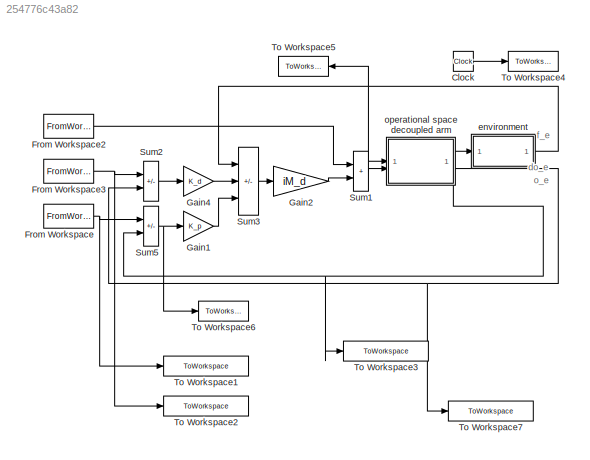
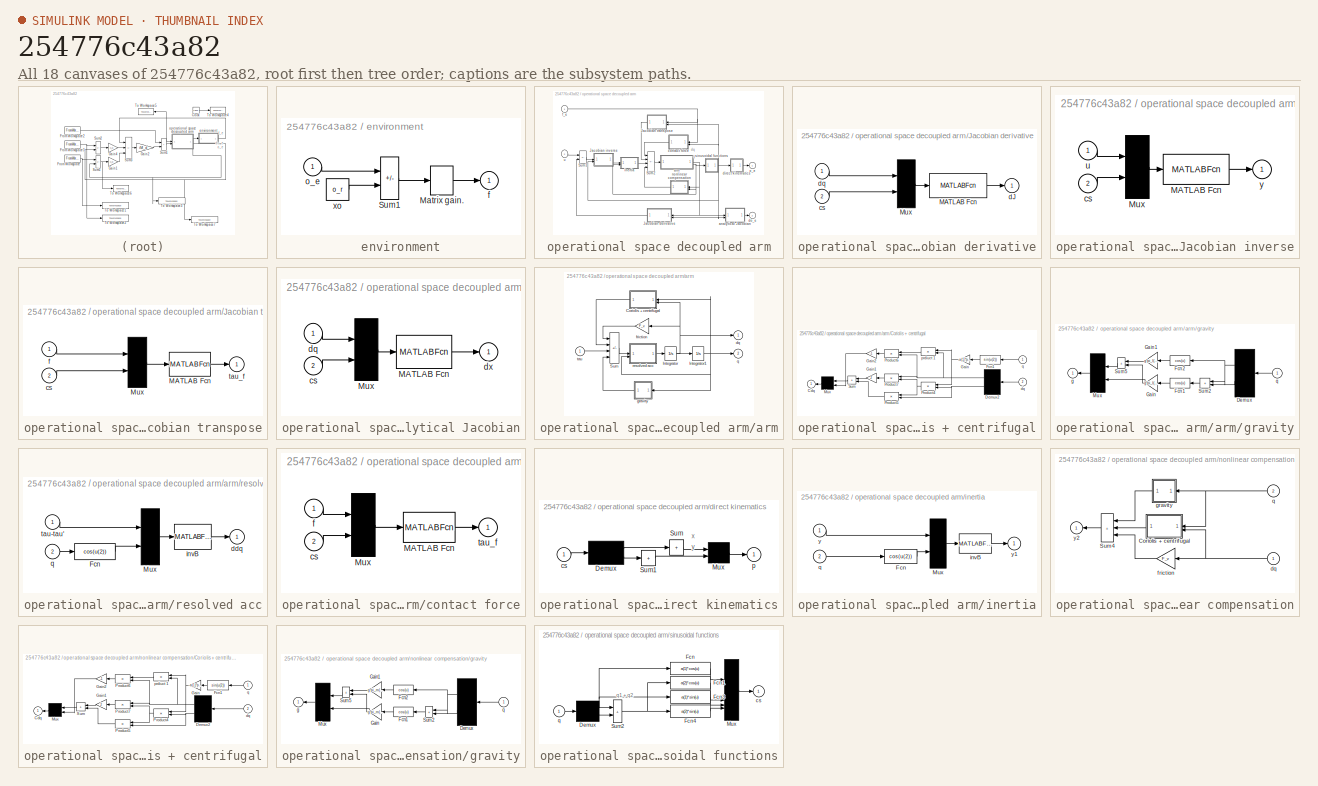
[diagram: thumbnail index - all 18 canvases of the model, root first then tree order]
MODEL slx_254776c43a82
KIND model
CONFIG AbsTol = auto
CONFIG EnableMultiTasking = off
CONFIG FixedStep = auto
CONFIG MaxStep = auto
CONFIG MinStep = auto
CONFIG RelTol = 1e-3
CONFIG SampleTimeConstraint = Unconstrained
CONFIG SolverName = VariableStepAuto
CONFIG StartTime = 0.0
CONFIG StopTime = t_d
WORKSPACE source: external: MAT-File  (data not in archive)
BLOCK [Clock] Clock
BLOCK [FromWorkspace] From Workspace
  SampleTime = Tc
  VariableName = [T,o_d]
  ZeroCross = off
BLOCK [FromWorkspace] From Workspace2
  SampleTime = Tc
  VariableName = [T,ddo_d]
  ZeroCross = off
BLOCK [FromWorkspace] From Workspace3
  SampleTime = Tc
  VariableName = [T,do_d]
  ZeroCross = off
BLOCK [Gain] Gain1
  Gain = K_p
  Multiplication = Matrix(K*u)
  SampleTime = Tc
BLOCK [Gain] Gain2
  Gain = iM_d
  Multiplication = Matrix(K*u)
  SampleTime = Tc
BLOCK [Gain] Gain4
  Gain = K_d
  Multiplication = Matrix(K*u)
  SampleTime = Tc
BLOCK [Sum] Sum1
  IconShape = rectangular
  InputSameDT = on
  OutDataTypeStr = Inherit: Same as first input
  SaturateOnIntegerOverflow = on
BLOCK [Sum] Sum2
  IconShape = rectangular
  InputSameDT = on
  Inputs = +-
  OutDataTypeStr = Inherit: Same as first input
  SampleTime = Tc
  SaturateOnIntegerOverflow = on
BLOCK [Sum] Sum3
  IconShape = rectangular
  InputSameDT = on
  Inputs = -++
  OutDataTypeStr = Inherit: Same as first input
  SampleTime = Tc
  SaturateOnIntegerOverflow = on
BLOCK [Sum] Sum5
  IconShape = rectangular
  InputSameDT = on
  Inputs = +-
  OutDataTypeStr = Inherit: Same as first input
  SampleTime = Tc
  SaturateOnIntegerOverflow = on
BLOCK [ToWorkspace] To Workspace1
  MaxDataPoints = 5001
  SampleTime = Ts
  VariableName = pos_desired
BLOCK [ToWorkspace] To Workspace2
  MaxDataPoints = 5001
  SampleTime = Ts
  VariableName = vel_desired
BLOCK [ToWorkspace] To Workspace3
  MaxDataPoints = 5001
  SampleTime = Ts
  VariableName = pos_actual
BLOCK [ToWorkspace] To Workspace4
  MaxDataPoints = 5001
  SampleTime = Ts
  VariableName = time
BLOCK [ToWorkspace] To Workspace5
  MaxDataPoints = 5001
  SampleTime = Ts
  VariableName = f_e
BLOCK [ToWorkspace] To Workspace6
  MaxDataPoints = 5001
  SampleTime = Ts
  VariableName = e
BLOCK [ToWorkspace] To Workspace7
  MaxDataPoints = 5001
  SampleTime = Ts
  VariableName = vel_actual
BLOCK [SubSystem] environment
  NameLocation = top
  ShowPortLabels = none
BLOCK [StateSpace] environment/Matrix gain.
  A = []
  B = []
  C = []
  D = K
  InitialCondition = 0
BLOCK [Sum] environment/Sum1
  IconShape = rectangular
  InputSameDT = on
  Inputs = +-
  OutDataTypeStr = Inherit: Same as first input
  SaturateOnIntegerOverflow = on
BLOCK [Outport] environment/f
  InitialOutput = 0
BLOCK [Inport] environment/o_e
BLOCK [Constant] environment/xo
  Value = o_r
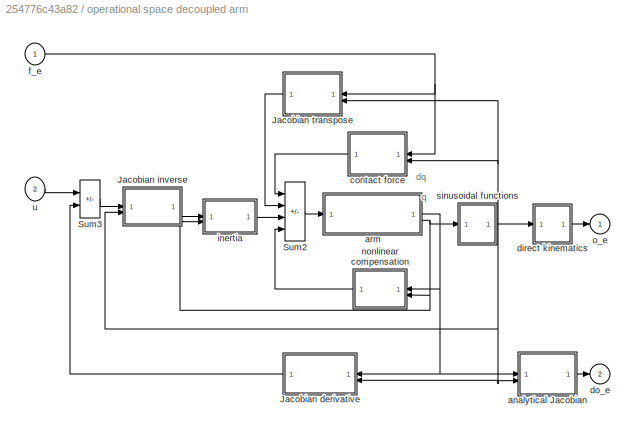
BLOCK [SubSystem] operational space decoupled arm
  NameLocation = top
  ShowPortLabels = none
BLOCK [SubSystem] operational space decoupled arm/Jacobian derivative
  NameLocation = top
  ShowPortLabels = none
BLOCK [MATLABFcn] operational space decoupled arm/Jacobian derivative/MATLAB Fcn
  MATLABFcn = dJ_a
  OutputDimensions = 2
  SampleTime = Tc
BLOCK [Mux] operational space decoupled arm/Jacobian derivative/Mux
  Inputs = [2,4]
BLOCK [Inport] operational space decoupled arm/Jacobian derivative/cs
  Port = 2
BLOCK [Outport] operational space decoupled arm/Jacobian derivative/dJ
  InitialOutput = 0
BLOCK [Inport] operational space decoupled arm/Jacobian derivative/dq
BLOCK [SubSystem] operational space decoupled arm/Jacobian inverse
  NameLocation = top
  ShowPortLabels = none
BLOCK [MATLABFcn] operational space decoupled arm/Jacobian inverse/MATLAB Fcn
  MATLABFcn = invJ_a
  OutputDimensions = 2
  SampleTime = Tc
BLOCK [Mux] operational space decoupled arm/Jacobian inverse/Mux
  Inputs = [2,4]
BLOCK [Inport] operational space decoupled arm/Jacobian inverse/cs
  Port = 2
BLOCK [Inport] operational space decoupled arm/Jacobian inverse/u
BLOCK [Outport] operational space decoupled arm/Jacobian inverse/y
  InitialOutput = 0
BLOCK [SubSystem] operational space decoupled arm/Jacobian transpose
  NameLocation = top
  ShowPortLabels = none
BLOCK [MATLABFcn] operational space decoupled arm/Jacobian transpose/MATLAB Fcn
  MATLABFcn = trJ_a
  OutputDimensions = 2
  SampleTime = Tc
BLOCK [Mux] operational space decoupled arm/Jacobian transpose/Mux
  Inputs = [2,4]
BLOCK [Inport] operational space decoupled arm/Jacobian transpose/cs
  Port = 2
BLOCK [Inport] operational space decoupled arm/Jacobian transpose/f
BLOCK [Outport] operational space decoupled arm/Jacobian transpose/tau_f
  InitialOutput = 0
BLOCK [Sum] operational space decoupled arm/Sum2
  IconShape = rectangular
  InputSameDT = on
  Inputs = -+++
  OutDataTypeStr = Inherit: Same as first input
  SaturateOnIntegerOverflow = on
BLOCK [Sum] operational space decoupled arm/Sum3
  IconShape = rectangular
  InputSameDT = on
  Inputs = +-
  OutDataTypeStr = Inherit: Same as first input
  SaturateOnIntegerOverflow = on
BLOCK [SubSystem] operational space decoupled arm/analytical Jacobian
  NameLocation = top
  ShowPortLabels = none
BLOCK [MATLABFcn] operational space decoupled arm/analytical Jacobian/MATLAB Fcn
  MATLABFcn = J_adq
  OutputDimensions = 2
BLOCK [Mux] operational space decoupled arm/analytical Jacobian/Mux
  Inputs = [2,4]
BLOCK [Inport] operational space decoupled arm/analytical Jacobian/cs
  Port = 2
BLOCK [Inport] operational space decoupled arm/analytical Jacobian/dq
BLOCK [Outport] operational space decoupled arm/analytical Jacobian/dx
  InitialOutput = 0
BLOCK [SubSystem] operational space decoupled arm/arm
  NameLocation = top
  ShowPortLabels = none
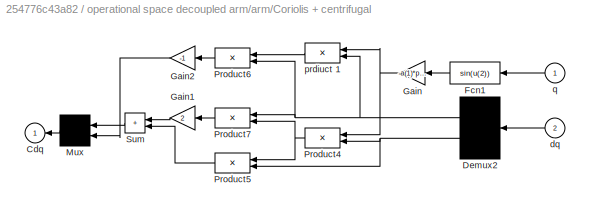
BLOCK [SubSystem] operational space decoupled arm/arm/Coriolis + centrifugal
  NameLocation = top
  ShowPortLabels = none
BLOCK [Outport] operational space decoupled arm/arm/Coriolis + centrifugal/Cdq
  InitialOutput = 0
BLOCK [Demux] operational space decoupled arm/arm/Coriolis + centrifugal/Demux2
  DisplayOption = none
  Outputs = 2
BLOCK [Fcn] operational space decoupled arm/arm/Coriolis + centrifugal/Fcn1
  Expr = sin(u(2))
BLOCK [Gain] operational space decoupled arm/arm/Coriolis + centrifugal/Gain
  Gain = -a(1)*pi_l(3)
  OutDataTypeStr = Inherit: Same as input
  ParamDataTypeStr = Inherit: Same as input
  SaturateOnIntegerOverflow = on
BLOCK [Gain] operational space decoupled arm/arm/Coriolis + centrifugal/Gain1
  Gain = 2
  OutDataTypeStr = Inherit: Same as input
  ParamDataTypeStr = Inherit: Same as input
  SaturateOnIntegerOverflow = on
BLOCK [Gain] operational space decoupled arm/arm/Coriolis + centrifugal/Gain2
  Gain = -1
  OutDataTypeStr = Inherit: Same as input
  ParamDataTypeStr = Inherit: Same as input
  SaturateOnIntegerOverflow = on
BLOCK [Mux] operational space decoupled arm/arm/Coriolis + centrifugal/Mux
  Inputs = 2
BLOCK [Product] operational space decoupled arm/arm/Coriolis + centrifugal/Product4
  InputSameDT = on
  OutDataTypeStr = Inherit: Same as first input
  RndMeth = Zero
  SaturateOnIntegerOverflow = on
BLOCK [Product] operational space decoupled arm/arm/Coriolis + centrifugal/Product5
  InputSameDT = on
  OutDataTypeStr = Inherit: Same as first input
  RndMeth = Zero
  SaturateOnIntegerOverflow = on
BLOCK [Product] operational space decoupled arm/arm/Coriolis + centrifugal/Product6
  InputSameDT = on
  OutDataTypeStr = Inherit: Same as first input
  RndMeth = Zero
  SaturateOnIntegerOverflow = on
BLOCK [Product] operational space decoupled arm/arm/Coriolis + centrifugal/Product7
  InputSameDT = on
  OutDataTypeStr = Inherit: Same as first input
  RndMeth = Zero
  SaturateOnIntegerOverflow = on
BLOCK [Sum] operational space decoupled arm/arm/Coriolis + centrifugal/Sum
  IconShape = rectangular
  InputSameDT = on
  OutDataTypeStr = Inherit: Same as first input
  SaturateOnIntegerOverflow = on
BLOCK [Inport] operational space decoupled arm/arm/Coriolis + centrifugal/dq
  Port = 2
BLOCK [Product] operational space decoupled arm/arm/Coriolis + centrifugal/prdiuct 1
  InputSameDT = on
  NameLocation = top
  OutDataTypeStr = Inherit: Same as first input
  RndMeth = Zero
  SaturateOnIntegerOverflow = on
BLOCK [Inport] operational space decoupled arm/arm/Coriolis + centrifugal/q
BLOCK [Integrator] operational space decoupled arm/arm/Integrator
  InitialCondition = [0 0]
  ZeroCross = off
BLOCK [Integrator] operational space decoupled arm/arm/Integrator1
  InitialCondition = q_i
  ZeroCross = off
BLOCK [Sum] operational space decoupled arm/arm/Sum
  IconShape = rectangular
  InputSameDT = on
  Inputs = --+-
  OutDataTypeStr = Inherit: Same as first input
  SaturateOnIntegerOverflow = on
BLOCK [Outport] operational space decoupled arm/arm/dq
  InitialOutput = 0
BLOCK [Gain] operational space decoupled arm/arm/friction
  Gain = F_v
  Multiplication = Matrix(K*u)
  NameLocation = top
  OutDataTypeStr = Inherit: Same as input
  ParamDataTypeStr = Inherit: Same as input
  SaturateOnIntegerOverflow = on
BLOCK [SubSystem] operational space decoupled arm/arm/gravity
  NameLocation = top
  ShowPortLabels = none
BLOCK [Demux] operational space decoupled arm/arm/gravity/Demux
  DisplayOption = none
  Outputs = 2
BLOCK [Fcn] operational space decoupled arm/arm/gravity/Fcn1
  Expr = cos(u)
BLOCK [Fcn] operational space decoupled arm/arm/gravity/Fcn2
  Expr = cos(u)
BLOCK [Gain] operational space decoupled arm/arm/gravity/Gain
  Gain = g*pi_l(3)
  OutDataTypeStr = Inherit: Same as input
  ParamDataTypeStr = Inherit: Same as input
  SaturateOnIntegerOverflow = on
BLOCK [Gain] operational space decoupled arm/arm/gravity/Gain1
  Gain = g*pi_l(1)
  OutDataTypeStr = Inherit: Same as input
  ParamDataTypeStr = Inherit: Same as input
  SaturateOnIntegerOverflow = on
BLOCK [Mux] operational space decoupled arm/arm/gravity/Mux
  Inputs = 2
BLOCK [Sum] operational space decoupled arm/arm/gravity/Sum2
  IconShape = rectangular
  InputSameDT = on
  OutDataTypeStr = Inherit: Same as first input
  SaturateOnIntegerOverflow = on
BLOCK [Sum] operational space decoupled arm/arm/gravity/Sum5
  IconShape = rectangular
  InputSameDT = on
  OutDataTypeStr = Inherit: Same as first input
  SaturateOnIntegerOverflow = on
BLOCK [Outport] operational space decoupled arm/arm/gravity/g
  InitialOutput = 0
BLOCK [Inport] operational space decoupled arm/arm/gravity/q
BLOCK [Outport] operational space decoupled arm/arm/q 
  InitialOutput = 0
  Port = 2
BLOCK [SubSystem] operational space decoupled arm/arm/resolved acc
  NameLocation = top
  ShowPortLabels = none
BLOCK [Fcn] operational space decoupled arm/arm/resolved acc/Fcn
  Expr = cos(u(2))
BLOCK [Mux] operational space decoupled arm/arm/resolved acc/Mux
  Inputs = [2,1]
BLOCK [Outport] operational space decoupled arm/arm/resolved acc/ddq
  InitialOutput = 0
BLOCK [MATLABFcn] operational space decoupled arm/arm/resolved acc/invB 
  MATLABFcn = inv(iner_l(u(3)))*u(1:2)
  OutputDimensions = 2
BLOCK [Inport] operational space decoupled arm/arm/resolved acc/q
  Port = 2
BLOCK [Inport] operational space decoupled arm/arm/resolved acc/tau-tau'
BLOCK [Inport] operational space decoupled arm/arm/tau
BLOCK [SubSystem] operational space decoupled arm/contact force
  NameLocation = top
  ShowPortLabels = none
BLOCK [MATLABFcn] operational space decoupled arm/contact force/MATLAB Fcn
  MATLABFcn = trJ_a
  OutputDimensions = 2
BLOCK [Mux] operational space decoupled arm/contact force/Mux
  Inputs = [2,4]
BLOCK [Inport] operational space decoupled arm/contact force/cs
  Port = 2
BLOCK [Inport] operational space decoupled arm/contact force/f
BLOCK [Outport] operational space decoupled arm/contact force/tau_f
  InitialOutput = 0
BLOCK [SubSystem] operational space decoupled arm/direct kinematics
  NameLocation = top
  ShowPortLabels = none
BLOCK [Demux] operational space decoupled arm/direct kinematics/Demux
  DisplayOption = none
  Outputs = [2,2]
BLOCK [Mux] operational space decoupled arm/direct kinematics/Mux
  Inputs = 2
BLOCK [Sum] operational space decoupled arm/direct kinematics/Sum
  IconShape = rectangular
  InputSameDT = on
  Inputs = +
  OutDataTypeStr = Inherit: Same as first input
  SaturateOnIntegerOverflow = on
BLOCK [Sum] operational space decoupled arm/direct kinematics/Sum1
  IconShape = rectangular
  InputSameDT = on
  Inputs = +
  OutDataTypeStr = Inherit: Same as first input
  SaturateOnIntegerOverflow = on
BLOCK [Inport] operational space decoupled arm/direct kinematics/cs
BLOCK [Outport] operational space decoupled arm/direct kinematics/p
  InitialOutput = 0
BLOCK [Outport] operational space decoupled arm/do_e
  InitialOutput = 0
  Port = 2
BLOCK [Inport] operational space decoupled arm/f_e
BLOCK [SubSystem] operational space decoupled arm/inertia
  NameLocation = top
  ShowPortLabels = none
BLOCK [Fcn] operational space decoupled arm/inertia/Fcn
  Expr = cos(u(2))
  SampleTime = Tc
BLOCK [Mux] operational space decoupled arm/inertia/Mux
  Inputs = [2,1]
BLOCK [MATLABFcn] operational space decoupled arm/inertia/invB 
  MATLABFcn = iner(u(3))*u(1:2)
  OutputDimensions = 2
  SampleTime = Tc
BLOCK [Inport] operational space decoupled arm/inertia/q
  Port = 2
BLOCK [Inport] operational space decoupled arm/inertia/y
BLOCK [Outport] operational space decoupled arm/inertia/y1
  InitialOutput = 0
BLOCK [SubSystem] operational space decoupled arm/nonlinear compensation
  NameLocation = top
  ShowPortLabels = none
BLOCK [SubSystem] operational space decoupled arm/nonlinear compensation/Coriolis + centrifugal
  NameLocation = top
  ShowPortLabels = none
BLOCK [Outport] operational space decoupled arm/nonlinear compensation/Coriolis + centrifugal/Cdq
  InitialOutput = 0
BLOCK [Demux] operational space decoupled arm/nonlinear compensation/Coriolis + centrifugal/Demux2
  DisplayOption = none
  Outputs = 2
BLOCK [Fcn] operational space decoupled arm/nonlinear compensation/Coriolis + centrifugal/Fcn1
  Expr = sin(u(2))
  SampleTime = Tc
BLOCK [Gain] operational space decoupled arm/nonlinear compensation/Coriolis + centrifugal/Gain
  Gain = -a(1)*pi_m(3)
  OutDataTypeStr = Inherit: Same as input
  ParamDataTypeStr = Inherit: Same as input
  SaturateOnIntegerOverflow = on
BLOCK [Gain] operational space decoupled arm/nonlinear compensation/Coriolis + centrifugal/Gain1
  Gain = 2
  OutDataTypeStr = Inherit: Same as input
  ParamDataTypeStr = Inherit: Same as input
  SaturateOnIntegerOverflow = on
BLOCK [Gain] operational space decoupled arm/nonlinear compensation/Coriolis + centrifugal/Gain2
  Gain = -1
  OutDataTypeStr = Inherit: Same as input
  ParamDataTypeStr = Inherit: Same as input
  SaturateOnIntegerOverflow = on
BLOCK [Mux] operational space decoupled arm/nonlinear compensation/Coriolis + centrifugal/Mux
  Inputs = 2
BLOCK [Product] operational space decoupled arm/nonlinear compensation/Coriolis + centrifugal/Product4
  InputSameDT = on
  OutDataTypeStr = Inherit: Same as first input
  RndMeth = Zero
  SampleTime = Tc
  SaturateOnIntegerOverflow = on
BLOCK [Product] operational space decoupled arm/nonlinear compensation/Coriolis + centrifugal/Product5
  InputSameDT = on
  OutDataTypeStr = Inherit: Same as first input
  RndMeth = Zero
  SampleTime = Tc
  SaturateOnIntegerOverflow = on
BLOCK [Product] operational space decoupled arm/nonlinear compensation/Coriolis + centrifugal/Product6
  InputSameDT = on
  OutDataTypeStr = Inherit: Same as first input
  RndMeth = Zero
  SampleTime = Tc
  SaturateOnIntegerOverflow = on
BLOCK [Product] operational space decoupled arm/nonlinear compensation/Coriolis + centrifugal/Product7
  InputSameDT = on
  OutDataTypeStr = Inherit: Same as first input
  RndMeth = Zero
  SampleTime = Tc
  SaturateOnIntegerOverflow = on
BLOCK [Sum] operational space decoupled arm/nonlinear compensation/Coriolis + centrifugal/Sum
  IconShape = rectangular
  InputSameDT = on
  OutDataTypeStr = Inherit: Same as first input
  SaturateOnIntegerOverflow = on
BLOCK [Inport] operational space decoupled arm/nonlinear compensation/Coriolis + centrifugal/dq
  Port = 2
BLOCK [Product] operational space decoupled arm/nonlinear compensation/Coriolis + centrifugal/prdiuct 1
  InputSameDT = on
  NameLocation = top
  OutDataTypeStr = Inherit: Same as first input
  RndMeth = Zero
  SampleTime = Tc
  SaturateOnIntegerOverflow = on
BLOCK [Inport] operational space decoupled arm/nonlinear compensation/Coriolis + centrifugal/q
BLOCK [Sum] operational space decoupled arm/nonlinear compensation/Sum4
  IconShape = rectangular
  InputSameDT = on
  Inputs = +++
  OutDataTypeStr = Inherit: Same as first input
  SaturateOnIntegerOverflow = on
BLOCK [Inport] operational space decoupled arm/nonlinear compensation/dq
BLOCK [Gain] operational space decoupled arm/nonlinear compensation/friction
  Gain = F_v
  Multiplication = Matrix(K*u)
  NameLocation = top
  OutDataTypeStr = Inherit: Same as input
  ParamDataTypeStr = Inherit: Same as input
  SampleTime = Tc
  SaturateOnIntegerOverflow = on
BLOCK [SubSystem] operational space decoupled arm/nonlinear compensation/gravity
  NameLocation = top
  ShowPortLabels = none
BLOCK [Demux] operational space decoupled arm/nonlinear compensation/gravity/Demux
  DisplayOption = none
  Outputs = 2
BLOCK [Fcn] operational space decoupled arm/nonlinear compensation/gravity/Fcn1
  Expr = cos(u)
  SampleTime = Tc
BLOCK [Fcn] operational space decoupled arm/nonlinear compensation/gravity/Fcn2
  Expr = cos(u)
  SampleTime = Tc
BLOCK [Gain] operational space decoupled arm/nonlinear compensation/gravity/Gain
  Gain = g*pi_m(3)
  OutDataTypeStr = Inherit: Same as input
  ParamDataTypeStr = Inherit: Same as input
  SaturateOnIntegerOverflow = on
BLOCK [Gain] operational space decoupled arm/nonlinear compensation/gravity/Gain1
  Gain = g*pi_m(1)
  OutDataTypeStr = Inherit: Same as input
  ParamDataTypeStr = Inherit: Same as input
  SaturateOnIntegerOverflow = on
BLOCK [Mux] operational space decoupled arm/nonlinear compensation/gravity/Mux
  Inputs = 2
BLOCK [Sum] operational space decoupled arm/nonlinear compensation/gravity/Sum2
  IconShape = rectangular
  InputSameDT = on
  OutDataTypeStr = Inherit: Same as first input
  SampleTime = Tc
  SaturateOnIntegerOverflow = on
BLOCK [Sum] operational space decoupled arm/nonlinear compensation/gravity/Sum5
  IconShape = rectangular
  InputSameDT = on
  OutDataTypeStr = Inherit: Same as first input
  SaturateOnIntegerOverflow = on
BLOCK [Outport] operational space decoupled arm/nonlinear compensation/gravity/g
  InitialOutput = 0
BLOCK [Inport] operational space decoupled arm/nonlinear compensation/gravity/q
BLOCK [Inport] operational space decoupled arm/nonlinear compensation/q
  Port = 2
BLOCK [Outport] operational space decoupled arm/nonlinear compensation/y2
  InitialOutput = 0
BLOCK [Outport] operational space decoupled arm/o_e
  InitialOutput = 0
BLOCK [SubSystem] operational space decoupled arm/sinusoidal functions
  NameLocation = top
  ShowPortLabels = none
BLOCK [Demux] operational space decoupled arm/sinusoidal functions/Demux
  DisplayOption = none
  Outputs = 2
BLOCK [Fcn] operational space decoupled arm/sinusoidal functions/Fcn
  Expr = a(1)*cos(u)
BLOCK [Fcn] operational space decoupled arm/sinusoidal functions/Fcn1
  Expr = a(2)*cos(u)
BLOCK [Fcn] operational space decoupled arm/sinusoidal functions/Fcn3
  Expr = a(1)*sin(u)
BLOCK [Fcn] operational space decoupled arm/sinusoidal functions/Fcn4
  Expr = a(2)*sin(u)
BLOCK [Mux] operational space decoupled arm/sinusoidal functions/Mux
BLOCK [Sum] operational space decoupled arm/sinusoidal functions/Sum2
  IconShape = rectangular
  InputSameDT = on
  OutDataTypeStr = Inherit: Same as first input
  SaturateOnIntegerOverflow = on
BLOCK [Outport] operational space decoupled arm/sinusoidal functions/cs
  InitialOutput = 0
BLOCK [Inport] operational space decoupled arm/sinusoidal functions/q
BLOCK [Inport] operational space decoupled arm/u
  Port = 2
ANNOTATION (root): do_e
ANNOTATION (root): f_e
ANNOTATION (root): o_e
ANNOTATION operational space decoupled arm: dq
ANNOTATION operational space decoupled arm: q
ANNOTATION operational space decoupled arm/direct kinematics: x
ANNOTATION operational space decoupled arm/direct kinematics: y
ANNOTATION operational space decoupled arm/sinusoidal functions: q1 + q2
LINE Clock:1 -> To Workspace4:1
LINE From Workspace2:1 -> Sum1:1
NET From Workspace3:1 -> Sum2:1, To Workspace2:1
NET From Workspace:1 -> Sum5:1, To Workspace1:1
LINE Gain1:1 -> Sum3:3
LINE Gain2:1 -> Sum1:2
LINE Gain4:1 -> Sum3:2
LINE Sum1:1 -> operational space decoupled arm:2
LINE Sum2:1 -> Gain4:1
LINE Sum3:1 -> Gain2:1
NET Sum5:1 -> Gain1:1, To Workspace6:1
LINE environment/Matrix gain.:1 -> environment/f:1
LINE environment/Sum1:1 -> environment/Matrix gain.:1
LINE environment/o_e:1 -> environment/Sum1:1
LINE environment/xo:1 -> environment/Sum1:2
NET environment:1 -> Sum3:1, To Workspace5:1, operational space decoupled arm:1
LINE operational space decoupled arm/Jacobian derivative/MATLAB Fcn:1 -> operational space decoupled arm/Jacobian derivative/dJ:1
LINE operational space decoupled arm/Jacobian derivative/Mux:1 -> operational space decoupled arm/Jacobian derivative/MATLAB Fcn:1
LINE operational space decoupled arm/Jacobian derivative/cs:1 -> operational space decoupled arm/Jacobian derivative/Mux:2
LINE operational space decoupled arm/Jacobian derivative/dq:1 -> operational space decoupled arm/Jacobian derivative/Mux:1
LINE operational space decoupled arm/Jacobian derivative:1 -> operational space decoupled arm/Sum3:2
LINE operational space decoupled arm/Jacobian inverse/MATLAB Fcn:1 -> operational space decoupled arm/Jacobian inverse/y:1
LINE operational space decoupled arm/Jacobian inverse/Mux:1 -> operational space decoupled arm/Jacobian inverse/MATLAB Fcn:1
LINE operational space decoupled arm/Jacobian inverse/cs:1 -> operational space decoupled arm/Jacobian inverse/Mux:2
LINE operational space decoupled arm/Jacobian inverse/u:1 -> operational space decoupled arm/Jacobian inverse/Mux:1
LINE operational space decoupled arm/Jacobian inverse:1 -> operational space decoupled arm/inertia:1
LINE operational space decoupled arm/Jacobian transpose/MATLAB Fcn:1 -> operational space decoupled arm/Jacobian transpose/tau_f:1
LINE operational space decoupled arm/Jacobian transpose/Mux:1 -> operational space decoupled arm/Jacobian transpose/MATLAB Fcn:1
LINE operational space decoupled arm/Jacobian transpose/cs:1 -> operational space decoupled arm/Jacobian transpose/Mux:2
LINE operational space decoupled arm/Jacobian transpose/f:1 -> operational space decoupled arm/Jacobian transpose/Mux:1
LINE operational space decoupled arm/Jacobian transpose:1 -> operational space decoupled arm/Sum2:2
LINE operational space decoupled arm/Sum2:1 -> operational space decoupled arm/arm:1
LINE operational space decoupled arm/Sum3:1 -> operational space decoupled arm/Jacobian inverse:1
LINE operational space decoupled arm/analytical Jacobian/MATLAB Fcn:1 -> operational space decoupled arm/analytical Jacobian/dx:1
LINE operational space decoupled arm/analytical Jacobian/Mux:1 -> operational space decoupled arm/analytical Jacobian/MATLAB Fcn:1
LINE operational space decoupled arm/analytical Jacobian/cs:1 -> operational space decoupled arm/analytical Jacobian/Mux:2
LINE operational space decoupled arm/analytical Jacobian/dq:1 -> operational space decoupled arm/analytical Jacobian/Mux:1
LINE operational space decoupled arm/analytical Jacobian:1 -> operational space decoupled arm/do_e:1
NET operational space decoupled arm/arm/Coriolis + centrifugal/Demux2:1 -> operational space decoupled arm/arm/Coriolis + centrifugal/Product6:2, operational space decoupled arm/arm/Coriolis + centrifugal/Product7:1, operational space decoupled arm/arm/Coriolis + centrifugal/prdiuct 1:2
NET operational space decoupled arm/arm/Coriolis + centrifugal/Demux2:2 -> operational space decoupled arm/arm/Coriolis + centrifugal/Product4:2, operational space decoupled arm/arm/Coriolis + centrifugal/Product5:2
LINE operational space decoupled arm/arm/Coriolis + centrifugal/Fcn1:1 -> operational space decoupled arm/arm/Coriolis + centrifugal/Gain:1
LINE operational space decoupled arm/arm/Coriolis + centrifugal/Gain1:1 -> operational space decoupled arm/arm/Coriolis + centrifugal/Sum:1
LINE operational space decoupled arm/arm/Coriolis + centrifugal/Gain2:1 -> operational space decoupled arm/arm/Coriolis + centrifugal/Mux:2
NET operational space decoupled arm/arm/Coriolis + centrifugal/Gain:1 -> operational space decoupled arm/arm/Coriolis + centrifugal/Product4:1, operational space decoupled arm/arm/Coriolis + centrifugal/prdiuct 1:1
LINE operational space decoupled arm/arm/Coriolis + centrifugal/Mux:1 -> operational space decoupled arm/arm/Coriolis + centrifugal/Cdq:1
NET operational space decoupled arm/arm/Coriolis + centrifugal/Product4:1 -> operational space decoupled arm/arm/Coriolis + centrifugal/Product5:1, operational space decoupled arm/arm/Coriolis + centrifugal/Product7:2
LINE operational space decoupled arm/arm/Coriolis + centrifugal/Product5:1 -> operational space decoupled arm/arm/Coriolis + centrifugal/Sum:2
LINE operational space decoupled arm/arm/Coriolis + centrifugal/Product6:1 -> operational space decoupled arm/arm/Coriolis + centrifugal/Gain2:1
LINE operational space decoupled arm/arm/Coriolis + centrifugal/Product7:1 -> operational space decoupled arm/arm/Coriolis + centrifugal/Gain1:1
LINE operational space decoupled arm/arm/Coriolis + centrifugal/Sum:1 -> operational space decoupled arm/arm/Coriolis + centrifugal/Mux:1
LINE operational space decoupled arm/arm/Coriolis + centrifugal/dq:1 -> operational space decoupled arm/arm/Coriolis + centrifugal/Demux2:1
LINE operational space decoupled arm/arm/Coriolis + centrifugal/prdiuct 1:1 -> operational space decoupled arm/arm/Coriolis + centrifugal/Product6:1
LINE operational space decoupled arm/arm/Coriolis + centrifugal/q:1 -> operational space decoupled arm/arm/Coriolis + centrifugal/Fcn1:1
LINE operational space decoupled arm/arm/Coriolis + centrifugal:1 -> operational space decoupled arm/arm/Sum:2
NET operational space decoupled arm/arm/Integrator1:1 -> operational space decoupled arm/arm/Coriolis + centrifugal:1, operational space decoupled arm/arm/gravity:1, operational space decoupled arm/arm/q :1, operational space decoupled arm/arm/resolved acc:2
NET operational space decoupled arm/arm/Integrator:1 -> operational space decoupled arm/arm/Coriolis + centrifugal:2, operational space decoupled arm/arm/Integrator1:1, operational space decoupled arm/arm/dq:1, operational space decoupled arm/arm/friction:1
LINE operational space decoupled arm/arm/Sum:1 -> operational space decoupled arm/arm/resolved acc:1
LINE operational space decoupled arm/arm/friction:1 -> operational space decoupled arm/arm/Sum:1
NET operational space decoupled arm/arm/gravity/Demux:1 -> operational space decoupled arm/arm/gravity/Fcn2:1, operational space decoupled arm/arm/gravity/Sum2:1
LINE operational space decoupled arm/arm/gravity/Demux:2 -> operational space decoupled arm/arm/gravity/Sum2:2
LINE operational space decoupled arm/arm/gravity/Fcn1:1 -> operational space decoupled arm/arm/gravity/Gain:1
LINE operational space decoupled arm/arm/gravity/Fcn2:1 -> operational space decoupled arm/arm/gravity/Gain1:1
LINE operational space decoupled arm/arm/gravity/Gain1:1 -> operational space decoupled arm/arm/gravity/Sum5:1
NET operational space decoupled arm/arm/gravity/Gain:1 -> operational space decoupled arm/arm/gravity/Mux:2, operational space decoupled arm/arm/gravity/Sum5:2
LINE operational space decoupled arm/arm/gravity/Mux:1 -> operational space decoupled arm/arm/gravity/g:1
LINE operational space decoupled arm/arm/gravity/Sum2:1 -> operational space decoupled arm/arm/gravity/Fcn1:1
LINE operational space decoupled arm/arm/gravity/Sum5:1 -> operational space decoupled arm/arm/gravity/Mux:1
LINE operational space decoupled arm/arm/gravity/q:1 -> operational space decoupled arm/arm/gravity/Demux:1
LINE operational space decoupled arm/arm/gravity:1 -> operational space decoupled arm/arm/Sum:4
LINE operational space decoupled arm/arm/resolved acc/Fcn:1 -> operational space decoupled arm/arm/resolved acc/Mux:2
LINE operational space decoupled arm/arm/resolved acc/Mux:1 -> operational space decoupled arm/arm/resolved acc/invB :1
LINE operational space decoupled arm/arm/resolved acc/invB :1 -> operational space decoupled arm/arm/resolved acc/ddq:1
LINE operational space decoupled arm/arm/resolved acc/q:1 -> operational space decoupled arm/arm/resolved acc/Fcn:1
LINE operational space decoupled arm/arm/resolved acc/tau-tau':1 -> operational space decoupled arm/arm/resolved acc/Mux:1
LINE operational space decoupled arm/arm/resolved acc:1 -> operational space decoupled arm/arm/Integrator:1
LINE operational space decoupled arm/arm/tau:1 -> operational space decoupled arm/arm/Sum:3
NET operational space decoupled arm/arm:1 -> operational space decoupled arm/Jacobian derivative:1, operational space decoupled arm/analytical Jacobian:1, operational space decoupled arm/nonlinear compensation:1
NET operational space decoupled arm/arm:2 -> operational space decoupled arm/inertia:2, operational space decoupled arm/nonlinear compensation:2, operational space decoupled arm/sinusoidal functions:1
LINE operational space decoupled arm/contact force/MATLAB Fcn:1 -> operational space decoupled arm/contact force/tau_f:1
LINE operational space decoupled arm/contact force/Mux:1 -> operational space decoupled arm/contact force/MATLAB Fcn:1
LINE operational space decoupled arm/contact force/cs:1 -> operational space decoupled arm/contact force/Mux:2
LINE operational space decoupled arm/contact force/f:1 -> operational space decoupled arm/contact force/Mux:1
LINE operational space decoupled arm/contact force:1 -> operational space decoupled arm/Sum2:1
LINE operational space decoupled arm/direct kinematics/Demux:1 -> operational space decoupled arm/direct kinematics/Sum:1
LINE operational space decoupled arm/direct kinematics/Demux:2 -> operational space decoupled arm/direct kinematics/Sum1:1
LINE operational space decoupled arm/direct kinematics/Mux:1 -> operational space decoupled arm/direct kinematics/p:1
LINE operational space decoupled arm/direct kinematics/Sum1:1 -> operational space decoupled arm/direct kinematics/Mux:2
LINE operational space decoupled arm/direct kinematics/Sum:1 -> operational space decoupled arm/direct kinematics/Mux:1
LINE operational space decoupled arm/direct kinematics/cs:1 -> operational space decoupled arm/direct kinematics/Demux:1
LINE operational space decoupled arm/direct kinematics:1 -> operational space decoupled arm/o_e:1
NET operational space decoupled arm/f_e:1 -> operational space decoupled arm/Jacobian transpose:1, operational space decoupled arm/contact force:1
LINE operational space decoupled arm/inertia/Fcn:1 -> operational space decoupled arm/inertia/Mux:2
LINE operational space decoupled arm/inertia/Mux:1 -> operational space decoupled arm/inertia/invB :1
LINE operational space decoupled arm/inertia/invB :1 -> operational space decoupled arm/inertia/y1:1
LINE operational space decoupled arm/inertia/q:1 -> operational space decoupled arm/inertia/Fcn:1
LINE operational space decoupled arm/inertia/y:1 -> operational space decoupled arm/inertia/Mux:1
LINE operational space decoupled arm/inertia:1 -> operational space decoupled arm/Sum2:3
NET operational space decoupled arm/nonlinear compensation/Coriolis + centrifugal/Demux2:1 -> operational space decoupled arm/nonlinear compensation/Coriolis + centrifugal/Product6:2, operational space decoupled arm/nonlinear compensation/Coriolis + centrifugal/Product7:1, operational space decoupled arm/nonlinear compensation/Coriolis + centrifugal/prdiuct 1:2
NET operational space decoupled arm/nonlinear compensation/Coriolis + centrifugal/Demux2:2 -> operational space decoupled arm/nonlinear compensation/Coriolis + centrifugal/Product4:2, operational space decoupled arm/nonlinear compensation/Coriolis + centrifugal/Product5:2
LINE operational space decoupled arm/nonlinear compensation/Coriolis + centrifugal/Fcn1:1 -> operational space decoupled arm/nonlinear compensation/Coriolis + centrifugal/Gain:1
LINE operational space decoupled arm/nonlinear compensation/Coriolis + centrifugal/Gain1:1 -> operational space decoupled arm/nonlinear compensation/Coriolis + centrifugal/Sum:1
LINE operational space decoupled arm/nonlinear compensation/Coriolis + centrifugal/Gain2:1 -> operational space decoupled arm/nonlinear compensation/Coriolis + centrifugal/Mux:2
NET operational space decoupled arm/nonlinear compensation/Coriolis + centrifugal/Gain:1 -> operational space decoupled arm/nonlinear compensation/Coriolis + centrifugal/Product4:1, operational space decoupled arm/nonlinear compensation/Coriolis + centrifugal/prdiuct 1:1
LINE operational space decoupled arm/nonlinear compensation/Coriolis + centrifugal/Mux:1 -> operational space decoupled arm/nonlinear compensation/Coriolis + centrifugal/Cdq:1
NET operational space decoupled arm/nonlinear compensation/Coriolis + centrifugal/Product4:1 -> operational space decoupled arm/nonlinear compensation/Coriolis + centrifugal/Product5:1, operational space decoupled arm/nonlinear compensation/Coriolis + centrifugal/Product7:2
LINE operational space decoupled arm/nonlinear compensation/Coriolis + centrifugal/Product5:1 -> operational space decoupled arm/nonlinear compensation/Coriolis + centrifugal/Sum:2
LINE operational space decoupled arm/nonlinear compensation/Coriolis + centrifugal/Product6:1 -> operational space decoupled arm/nonlinear compensation/Coriolis + centrifugal/Gain2:1
LINE operational space decoupled arm/nonlinear compensation/Coriolis + centrifugal/Product7:1 -> operational space decoupled arm/nonlinear compensation/Coriolis + centrifugal/Gain1:1
LINE operational space decoupled arm/nonlinear compensation/Coriolis + centrifugal/Sum:1 -> operational space decoupled arm/nonlinear compensation/Coriolis + centrifugal/Mux:1
LINE operational space decoupled arm/nonlinear compensation/Coriolis + centrifugal/dq:1 -> operational space decoupled arm/nonlinear compensation/Coriolis + centrifugal/Demux2:1
LINE operational space decoupled arm/nonlinear compensation/Coriolis + centrifugal/prdiuct 1:1 -> operational space decoupled arm/nonlinear compensation/Coriolis + centrifugal/Product6:1
LINE operational space decoupled arm/nonlinear compensation/Coriolis + centrifugal/q:1 -> operational space decoupled arm/nonlinear compensation/Coriolis + centrifugal/Fcn1:1
LINE operational space decoupled arm/nonlinear compensation/Coriolis + centrifugal:1 -> operational space decoupled arm/nonlinear compensation/Sum4:2
LINE operational space decoupled arm/nonlinear compensation/Sum4:1 -> operational space decoupled arm/nonlinear compensation/y2:1
NET operational space decoupled arm/nonlinear compensation/dq:1 -> operational space decoupled arm/nonlinear compensation/Coriolis + centrifugal:2, operational space decoupled arm/nonlinear compensation/friction:1
LINE operational space decoupled arm/nonlinear compensation/friction:1 -> operational space decoupled arm/nonlinear compensation/Sum4:3
NET operational space decoupled arm/nonlinear compensation/gravity/Demux:1 -> operational space decoupled arm/nonlinear compensation/gravity/Fcn2:1, operational space decoupled arm/nonlinear compensation/gravity/Sum2:1
LINE operational space decoupled arm/nonlinear compensation/gravity/Demux:2 -> operational space decoupled arm/nonlinear compensation/gravity/Sum2:2
LINE operational space decoupled arm/nonlinear compensation/gravity/Fcn1:1 -> operational space decoupled arm/nonlinear compensation/gravity/Gain:1
LINE operational space decoupled arm/nonlinear compensation/gravity/Fcn2:1 -> operational space decoupled arm/nonlinear compensation/gravity/Gain1:1
LINE operational space decoupled arm/nonlinear compensation/gravity/Gain1:1 -> operational space decoupled arm/nonlinear compensation/gravity/Sum5:1
NET operational space decoupled arm/nonlinear compensation/gravity/Gain:1 -> operational space decoupled arm/nonlinear compensation/gravity/Mux:2, operational space decoupled arm/nonlinear compensation/gravity/Sum5:2
LINE operational space decoupled arm/nonlinear compensation/gravity/Mux:1 -> operational space decoupled arm/nonlinear compensation/gravity/g:1
LINE operational space decoupled arm/nonlinear compensation/gravity/Sum2:1 -> operational space decoupled arm/nonlinear compensation/gravity/Fcn1:1
LINE operational space decoupled arm/nonlinear compensation/gravity/Sum5:1 -> operational space decoupled arm/nonlinear compensation/gravity/Mux:1
LINE operational space decoupled arm/nonlinear compensation/gravity/q:1 -> operational space decoupled arm/nonlinear compensation/gravity/Demux:1
LINE operational space decoupled arm/nonlinear compensation/gravity:1 -> operational space decoupled arm/nonlinear compensation/Sum4:1
NET operational space decoupled arm/nonlinear compensation/q:1 -> operational space decoupled arm/nonlinear compensation/Coriolis + centrifugal:1, operational space decoupled arm/nonlinear compensation/gravity:1
LINE operational space decoupled arm/nonlinear compensation:1 -> operational space decoupled arm/Sum2:4
NET operational space decoupled arm/sinusoidal functions/Demux:1 -> operational space decoupled arm/sinusoidal functions/Fcn3:1, operational space decoupled arm/sinusoidal functions/Fcn:1, operational space decoupled arm/sinusoidal functions/Sum2:1
LINE operational space decoupled arm/sinusoidal functions/Demux:2 -> operational space decoupled arm/sinusoidal functions/Sum2:2
LINE operational space decoupled arm/sinusoidal functions/Fcn1:1 -> operational space decoupled arm/sinusoidal functions/Mux:2
LINE operational space decoupled arm/sinusoidal functions/Fcn3:1 -> operational space decoupled arm/sinusoidal functions/Mux:3
LINE operational space decoupled arm/sinusoidal functions/Fcn4:1 -> operational space decoupled arm/sinusoidal functions/Mux:4
LINE operational space decoupled arm/sinusoidal functions/Fcn:1 -> operational space decoupled arm/sinusoidal functions/Mux:1
LINE operational space decoupled arm/sinusoidal functions/Mux:1 -> operational space decoupled arm/sinusoidal functions/cs:1
NET operational space decoupled arm/sinusoidal functions/Sum2:1 -> operational space decoupled arm/sinusoidal functions/Fcn1:1, operational space decoupled arm/sinusoidal functions/Fcn4:1
LINE operational space decoupled arm/sinusoidal functions/q:1 -> operational space decoupled arm/sinusoidal functions/Demux:1
NET operational space decoupled arm/sinusoidal functions:1 -> operational space decoupled arm/Jacobian derivative:2, operational space decoupled arm/Jacobian inverse:2, operational space decoupled arm/Jacobian transpose:2, operational space decoupled arm/analytical Jacobian:2, operational space decoupled arm/contact force:2, operational space decoupled arm/direct kinematics:1
LINE operational space decoupled arm/u:1 -> operational space decoupled arm/Sum3:1
NET operational space decoupled arm:1 -> Sum5:2, To Workspace3:1, environment:1
NET operational space decoupled arm:2 -> Sum2:2, To Workspace7:1
note: NET lines group one-source signal fan-out (src -> all destinations, sorted); 1:1 wires keep LINE
